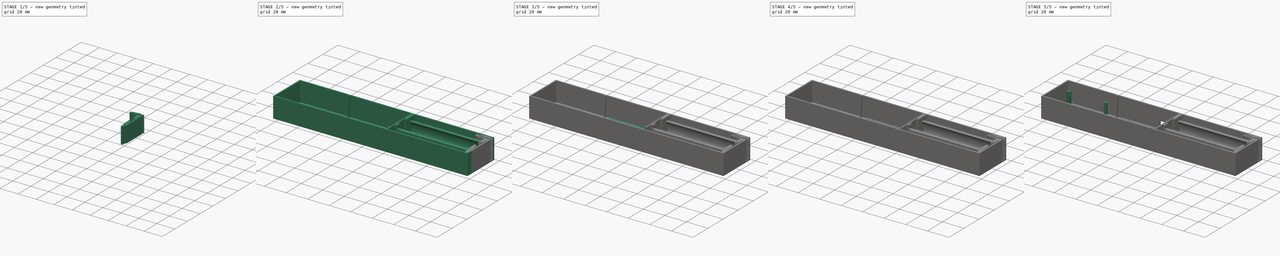
[diagram: build sequence overview — one tinted view per stage of 5, left to right]
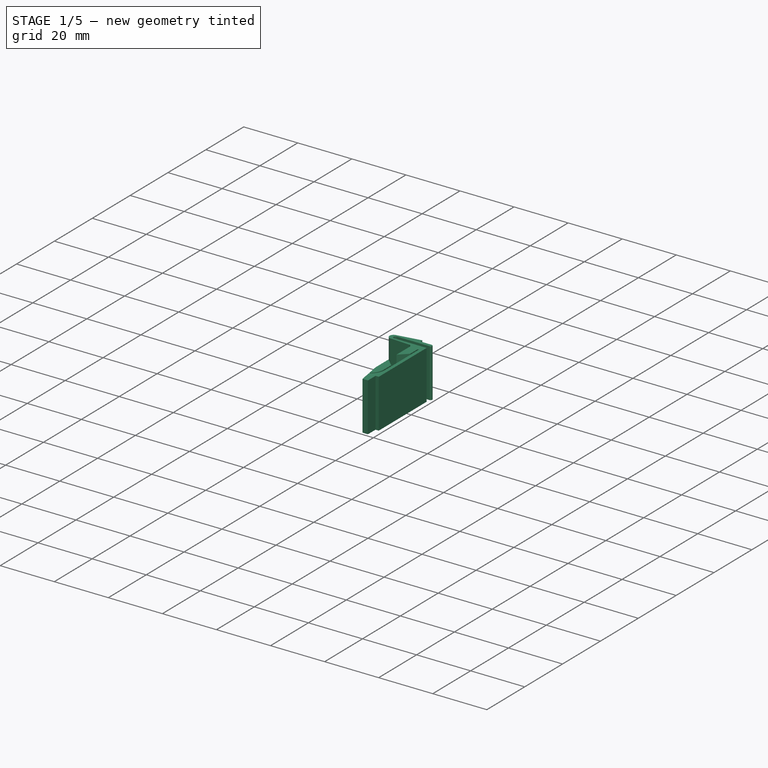
[diagram: stage 1 of 5 — iso view after this stage's code; geometry added in this stage tinted green]
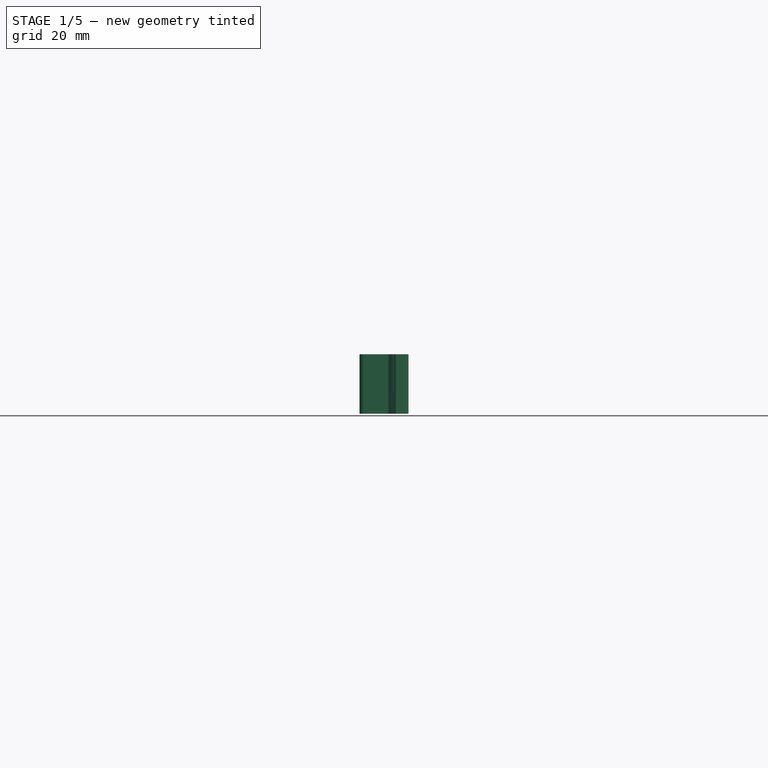
[diagram: stage 1 of 5 — front view after this stage's code; geometry added in this stage tinted green]
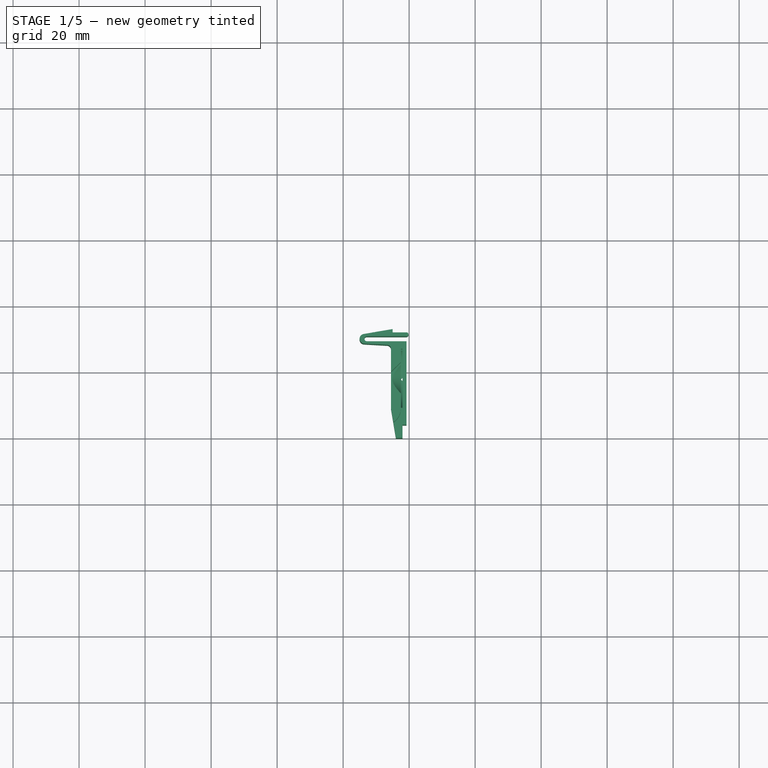
[diagram: stage 1 of 5 — top view after this stage's code; geometry added in this stage tinted green]
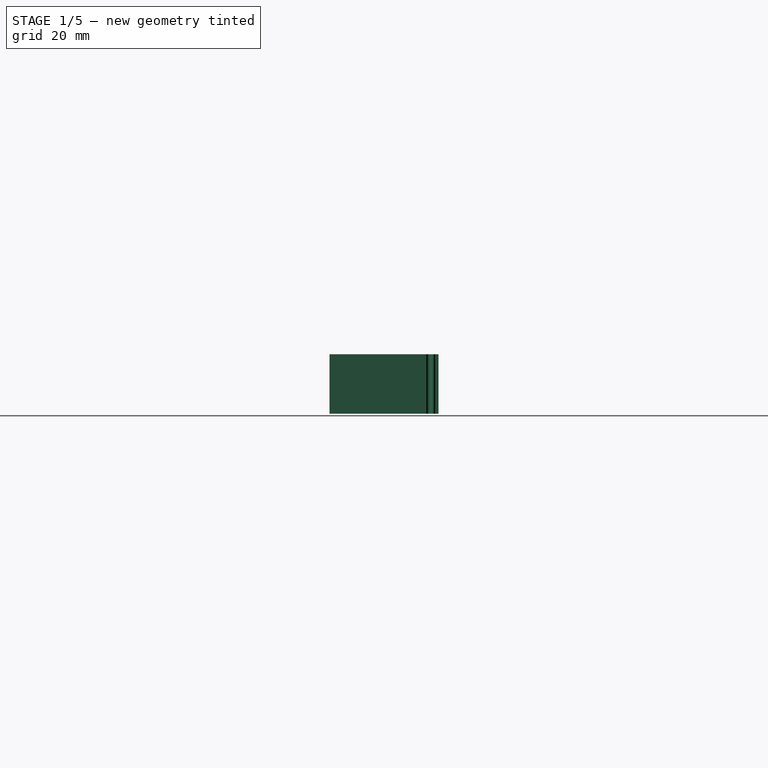
[diagram: stage 1 of 5 — right view after this stage's code; geometry added in this stage tinted green]
FCSTD DOCUMENT  (FreeCAD 0.20R29410 (Git))
Label: grobskizze
License: All rights reserved
LicenseURL: http://en.wikipedia.org/wiki/All_rights_reserved
objects: Sketcher::SketchObject×15, PartDesign::Pad×7, PartDesign::Pocket×6, PartDesign::Plane×4, PartDesign::Mirrored×4, PartDesign::LinearPattern×3, PartDesign::MultiTransform×3, PartDesign::Body×2, PartDesign::ShapeBinder×2, PartDesign::Line×1, PartDesign::Groove×1
note: 62 computed .brp shape members not serialized (recipe doc carries the construction recipe); baked Part::Feature solids carry a one-line shape summary decoded from their .brp

FEATURE [Sketcher::SketchObject] Sketch  label="master"
  FullyConstrained = true
  expr: Constraints[70] = .Constraints.poleoffset
  expr: Constraints[71] = .Constraints.poleoffset
  expr: Constraints[72] = .Constraints.poleoffset
  sketch-geometry (26):
    g0: LineSegment StartX=0 StartY=0 StartZ=0 EndX=178 EndY=0 EndZ=0
    g1: LineSegment StartX=178 StartY=0 StartZ=0 EndX=178 EndY=33 EndZ=0
    g2: LineSegment StartX=178 StartY=33 StartZ=0 EndX=0 EndY=33 EndZ=0
    g3: LineSegment StartX=0 StartY=33 StartZ=0 EndX=0 EndY=0 EndZ=0
    g4: LineSegment StartX=103 StartY=33 StartZ=0 EndX=104.2 EndY=33 EndZ=0
    g5: LineSegment StartX=104.2 StartY=33 StartZ=0 EndX=104.2 EndY=0 EndZ=0
    g6: LineSegment StartX=104.2 StartY=0 StartZ=0 EndX=103 EndY=0 EndZ=0
    g7: LineSegment StartX=103 StartY=0 StartZ=0 EndX=103 EndY=33 EndZ=0
    g8: LineSegment StartX=101 StartY=4 StartZ=0 EndX=55 EndY=4 EndZ=0
    g9: LineSegment StartX=55 StartY=4 StartZ=0 EndX=55 EndY=27 EndZ=0
    g10: LineSegment StartX=55 StartY=27 StartZ=0 EndX=101 EndY=27 EndZ=0
    g11: LineSegment StartX=101 StartY=27 StartZ=0 EndX=101 EndY=4 EndZ=0
    g12: LineSegment StartX=4 StartY=28 StartZ=0 EndX=38 EndY=28 EndZ=0
    g13: LineSegment StartX=38 StartY=28 StartZ=0 EndX=38 EndY=4 EndZ=0
    g14: LineSegment StartX=38 StartY=4 StartZ=0 EndX=4 EndY=4 EndZ=0
    g15: LineSegment StartX=4 StartY=4 StartZ=0 EndX=4 EndY=28 EndZ=0
    g16: LineSegment StartX=107.2 StartY=27 StartZ=0 EndX=174.2 EndY=27 EndZ=0
    g17: LineSegment StartX=174.2 StartY=27 StartZ=0 EndX=174.2 EndY=9 EndZ=0
    g18: LineSegment StartX=174.2 StartY=9 StartZ=0 EndX=107.2 EndY=9 EndZ=0
    g19: LineSegment StartX=107.2 StartY=9 StartZ=0 EndX=107.2 EndY=27 EndZ=0
    g20: GeomPoint X=140.7 Y=18 Z=0
    g21: GeomPoint X=5 Y=5 Z=0
    g22: LineSegment StartX=5 StartY=5 StartZ=0 EndX=37 EndY=5 EndZ=0
    g23: LineSegment StartX=37 StartY=5 StartZ=0 EndX=37 EndY=27 EndZ=0
    g24: LineSegment StartX=37 StartY=27 StartZ=0 EndX=5 EndY=27 EndZ=0
    g25: LineSegment StartX=5 StartY=27 StartZ=0 EndX=5 EndY=5 EndZ=0
  constraints (73):
    c: Coincident(g0,g1)
    c: Coincident(g1,g2)
    c: Coincident(g2,g3)
    c: Coincident(g3,g0)
    c: Horizontal(g0)
    c: Horizontal(g2)
    c: Vertical(g1)
    c: Vertical(g3)
    c: Coincident(g0,g-1)
    c: DistanceY(g1,g1) = 33  'innerheight'
    c: DistanceX(g2,g2) = 178  'innerwidth'
    c: Coincident(g4,g5)
    c: Coincident(g5,g6)
    c: Coincident(g6,g7)
    c: Coincident(g7,g4)
    c: Horizontal(g4)
    c: Horizontal(g6)
    c: Vertical(g5)
    c: Vertical(g7)
    c: PointOnObject(g4,g2)
    c: PointOnObject(g5,g0)
    c: DistanceX(g6,g5) = 1.2  'thick'
    c: Coincident(g8,g9)
    c: Coincident(g9,g10)
    c: Coincident(g10,g11)
    c: Coincident(g11,g8)
    c: Horizontal(g8)
    c: Horizontal(g10)
    c: Vertical(g9)
    c: Vertical(g11)
    c: DistanceY(g6,g8) = 4
    c: DistanceX(g8,g6) = 2
    c: DistanceY(g9,g9) = 23  'espheight'
    c: DistanceX(g8,g8) = 46  'espwidth'
    c: Coincident(g12,g13)
    c: Coincident(g13,g14)
    c: Coincident(g14,g15)
    c: Coincident(g15,g12)
    c: Horizontal(g12)
    c: Horizontal(g14)
    c: Vertical(g13)
    c: Vertical(g15)
    c: DistanceX(g12,g12) = 34
    c: DistanceY(g15,g15) = 24
    c: PointOnObject(g13,g8)
    c: DistanceX(g0,g14) = 4
    c: Coincident(g16,g17)
    c: Coincident(g17,g18)
    c: Coincident(g18,g19)
    c: Coincident(g19,g16)
    c: Horizontal(g16)
    c: Horizontal(g18)
    c: Vertical(g17)
    c: Vertical(g19)
    c: DistanceX(g4,g16) = 3
    c: Symmetric(g16,g17,g20)
    c: DistanceY(g19,g19) = 18
    c: DistanceX(g16,g16) = 67
    c: DistanceX(g4,g1) = 75
    c: DistanceY(g16,g1) = 6
    c: DistanceX(g14,g21) = 1  'poleoffset'
    c: Coincident(g22,g23)
    c: Coincident(g23,g24)
    c: Coincident(g24,g25)
    c: Coincident(g25,g22)
    c: Horizontal(g22)
    c: Horizontal(g24)
    c: Vertical(g23)
    c: Vertical(g25)
    c: Coincident(g22,g21)
    c: DistanceY(g14,g22) = 1
    c: DistanceY(g23,g12) = 1
    c: DistanceX(g23,g12) = 1
FEATURE [Sketcher::SketchObject] Sketch001
  ExternalGeometry = -> [Sketch]
  FullyConstrained = false
  MapMode = 5
  Support = -> [XY_Plane]
  expr: Constraints[10] = <<master>>.Constraints.thick
  expr: Constraints[11] = <<master>>.Constraints.thick
  expr: Constraints[8] = <<master>>.Constraints.thick
  expr: Constraints[9] = <<master>>.Constraints.thick
  sketch-geometry (26):
    g0: LineSegment StartX=-1.2 StartY=34.2 StartZ=0 EndX=179.2 EndY=34.2 EndZ=0
    g1: LineSegment StartX=179.2 StartY=34.2 StartZ=0 EndX=179.2 EndY=-1.2 EndZ=0
    g2: LineSegment StartX=179.2 StartY=-1.2 StartZ=0 EndX=-1.2 EndY=-1.2 EndZ=0
    g3: LineSegment StartX=-1.2 StartY=-1.2 StartZ=0 EndX=-1.2 EndY=34.2 EndZ=0
    g4: ArcOfCircle CenterX=11.8243 CenterY=16.0681 CenterZ=0 NormalX=0 NormalY=0 NormalZ=1 AngleXU=0 Radius=9.10165 StartAngle=1.5708 EndAngle=4.71239
    g5: ArcOfCircle CenterX=31.1155 CenterY=16.0681 CenterZ=0 NormalX=0 NormalY=0 NormalZ=1 AngleXU=0 Radius=9.10165 StartAngle=4.71239 EndAngle=7.85398
    g6: LineSegment StartX=11.8243 StartY=6.96642 StartZ=0 EndX=31.1155 EndY=6.96642 EndZ=0
    g7: LineSegment StartX=31.1155 StartY=25.1697 StartZ=0 EndX=11.8243 EndY=25.1697 EndZ=0
    g8: ArcOfCircle CenterX=58.9643 CenterY=15.3428 CenterZ=0 NormalX=0 NormalY=0 NormalZ=1 AngleXU=0 Radius=8.15885 StartAngle=1.5708 EndAngle=4.71239
    g9: ArcOfCircle CenterX=90.4391 CenterY=15.3428 CenterZ=0 NormalX=0 NormalY=0 NormalZ=1 AngleXU=0 Radius=8.15885 StartAngle=4.71239 EndAngle=7.85398
    g10: LineSegment StartX=58.9643 StartY=7.18398 StartZ=0 EndX=90.4391 EndY=7.18398 EndZ=0
    g11: LineSegment StartX=90.4391 StartY=23.5017 StartZ=0 EndX=58.9643 EndY=23.5017 EndZ=0
    g12: Circle CenterX=45.5486 CenterY=25.5838 CenterZ=0 NormalX=0 NormalY=0 NormalZ=1 AngleXU=0 Radius=4.80408
    g13: Circle CenterX=45.5486 CenterY=6.93943 CenterZ=0 NormalX=0 NormalY=0 NormalZ=1 AngleXU=0 Radius=4.80408
    g14: ArcOfCircle CenterX=114.263 CenterY=17.9793 CenterZ=0 NormalX=0 NormalY=0 NormalZ=1 AngleXU=0 Radius=2.37508 StartAngle=1.5708 EndAngle=4.71239
    g15: ArcOfCircle CenterX=165.921 CenterY=17.9793 CenterZ=0 NormalX=0 NormalY=0 NormalZ=1 AngleXU=0 Radius=2.37508 StartAngle=4.71239 EndAngle=7.85398
    g16: LineSegment StartX=114.263 StartY=15.6042 StartZ=0 EndX=165.921 EndY=15.6042 EndZ=0
    g17: LineSegment StartX=165.921 StartY=20.3544 StartZ=0 EndX=114.263 EndY=20.3544 EndZ=0
    g18: ArcOfCircle CenterX=107.969 CenterY=3.72883 CenterZ=0 NormalX=0 NormalY=0 NormalZ=1 AngleXU=0 Radius=1.90006 StartAngle=1.5708 EndAngle=4.71239
    g19: ArcOfCircle CenterX=173.759 CenterY=3.72883 CenterZ=0 NormalX=0 NormalY=0 NormalZ=1 AngleXU=0 Radius=1.90006 StartAngle=4.71239 EndAngle=7.85398
    g20: LineSegment StartX=107.969 StartY=1.82877 StartZ=0 EndX=173.759 EndY=1.82877 EndZ=0
    g21: LineSegment StartX=173.759 StartY=5.62889 StartZ=0 EndX=107.969 EndY=5.62889 EndZ=0
    g22: ArcOfCircle CenterX=108.326 CenterY=30.1851 CenterZ=0 NormalX=0 NormalY=0 NormalZ=1 AngleXU=0 Radius=1.25117 StartAngle=1.5708 EndAngle=4.71239
    g23: ArcOfCircle CenterX=172.453 CenterY=30.1851 CenterZ=0 NormalX=0 NormalY=0 NormalZ=1 AngleXU=0 Radius=1.25117 StartAngle=4.71239 EndAngle=7.85398
    g24: LineSegment StartX=108.326 StartY=28.934 StartZ=0 EndX=172.453 EndY=28.934 EndZ=0
    g25: LineSegment StartX=172.453 StartY=31.4363 StartZ=0 EndX=108.326 EndY=31.4363 EndZ=0
  constraints (44):
    c: Coincident(g0,g1)
    c: Coincident(g1,g2)
    c: Coincident(g2,g3)
    c: Coincident(g3,g0)
    c: Horizontal(g0)
    c: Horizontal(g2)
    c: Vertical(g1)
    c: Vertical(g3)
    c: DistanceX(g-3,g1) = 1.2
    c: DistanceY(g1,g-3) = 1.2
    c: DistanceY(g-4,g0) = 1.2
    c: DistanceX(g0,g-4) = 1.2
    c: Tangent(g4,g6) = -1.5708
    c: Tangent(g6,g5) = -1.5708
    c: Tangent(g5,g7) = -1.5708
    c: Tangent(g7,g4) = -1.5708
    c: Equal(g4,g5)
    c: Horizontal(g6)
    c: Tangent(g8,g10) = -1.5708
    c: Tangent(g10,g9) = -1.5708
    c: Tangent(g9,g11) = -1.5708
    c: Tangent(g11,g8) = -1.5708
    c: Equal(g8,g9)
    c: Horizontal(g10)
    c: Equal(g12,g13)
    c: Vertical(g12,g13)
    c: Tangent(g14,g16) = -1.5708
    c: Tangent(g16,g15) = -1.5708
    c: Tangent(g15,g17) = -1.5708
    c: Tangent(g17,g14) = -1.5708
    c: Equal(g14,g15)
    c: Horizontal(g16)
    c: Tangent(g18,g20) = -1.5708
    c: Tangent(g20,g19) = -1.5708
    c: Tangent(g19,g21) = -1.5708
    c: Tangent(g21,g18) = -1.5708
    c: Equal(g18,g19)
    c: Horizontal(g20)
    c: Tangent(g22,g24) = -1.5708
    c: Tangent(g24,g23) = -1.5708
    c: Tangent(g23,g25) = -1.5708
    c: Tangent(g25,g22) = -1.5708
    c: Equal(g22,g23)
    c: Horizontal(g24)
FEATURE [PartDesign::Pad] Pad
  Direction = (0,0,1)
  Length = 1
  Length2 = 10
  Profile = -> Sketch001
  ReferenceAxis = -> Sketch001 [N_Axis]
  Reversed = true
  Type = 0
FEATURE [PartDesign::Body] Body
  Group = -> [Sketch001,Sketch,Pad,Sketch002,Pad001,DatumPlane,Sketch003,Pad002,Sketch004,Pocket,Sketch005,Pad003,Pad004,LinearPattern,Sketch006,Pocket001,MultiTransform,LinearPattern001,LinearPattern002,DatumPlane002,DatumPlane003,Sketch007,Pad005,Sketch008,MultiTransform001,Mirrored,Mirrored001,Pocket002,MultiTransform002,Mirrored002,Mirrored003,DatumPlane004,Sketch009,Pocket003]
  Origin = -> Origin
  Tip = -> Pocket003
FEATURE [PartDesign::ShapeBinder] ShapeBinder
  Support = -> [Sketch002]
  TraceSupport = false
FEATURE [PartDesign::ShapeBinder] ShapeBinder001
  Support = -> [Sketch]
  TraceSupport = false
FEATURE [Sketcher::SketchObject] Sketch010
  ExternalGeometry = -> [ShapeBinder,ShapeBinder001]
  FullyConstrained = true
  MapMode = 5
  Support = -> [XY_Plane001]
  sketch-geometry (16):
    g0: LineSegment StartX=178 StartY=0 StartZ=0 EndX=176 EndY=0 EndZ=0
    g1: LineSegment StartX=176 StartY=0 StartZ=0 EndX=174.5 EndY=9 EndZ=0
    g2: LineSegment StartX=175 StartY=33 StartZ=0 EndX=175 EndY=32 EndZ=0
    g3: LineSegment StartX=175 StartY=32 StartZ=0 EndX=179.2 EndY=32 EndZ=0
    g4: LineSegment StartX=179.2 StartY=4 StartZ=0 EndX=178 EndY=4 EndZ=0
    g5: LineSegment StartX=178 StartY=4 StartZ=0 EndX=178 EndY=0 EndZ=0
    g6: LineSegment StartX=179.2 StartY=29.3 StartZ=0 EndX=179.2 EndY=4 EndZ=0
    g7: LineSegment StartX=175 StartY=33 StartZ=0 EndX=166.203 EndY=31.5 EndZ=0
    g8: LineSegment StartX=179.2 StartY=30.8 StartZ=0 EndX=167.2 EndY=30.8 EndZ=0
    g9: ArcOfCircle CenterX=167.2 CenterY=30.05 CenterZ=0 NormalX=0 NormalY=0 NormalZ=1 AngleXU=0 Radius=0.75 StartAngle=1.5708 EndAngle=4.71239
    g10: LineSegment StartX=179.2 StartY=29.3 StartZ=0 EndX=167.2 EndY=29.3 EndZ=0
    g11: ArcOfCircle CenterX=166.45 CenterY=30.05 CenterZ=0 NormalX=0 NormalY=0 NormalZ=1 AngleXU=0 Radius=1.47093 StartAngle=1.73968 EndAngle=4.65769
    g12: ArcOfCircle CenterX=179.2 CenterY=31.4 CenterZ=0 NormalX=0 NormalY=0 NormalZ=1 AngleXU=0 Radius=0.6 StartAngle=4.71239 EndAngle=7.85398
    g13: LineSegment StartX=174.5 StartY=27 StartZ=0 EndX=174.5 EndY=9 EndZ=0
    g14: LineSegment StartX=173.366 StartY=28.1982 StartZ=0 EndX=166.37 EndY=28.5813 EndZ=0
    g15: ArcOfCircle CenterX=173.3 CenterY=27 CenterZ=0 NormalX=0 NormalY=0 NormalZ=1 AngleXU=0 Radius=1.2 StartAngle=0 EndAngle=1.5161
  constraints (40):
    c: Coincident(g-3,g0)
    c: PointOnObject(g0,g-1)
    c: Coincident(g0,g1)
    c: Coincident(g2,g-6)
    c: Coincident(g2,g3)
    c: Horizontal(g3)
    c: Coincident(g6,g-4)
    c: Coincident(g6,g4)
    c: Coincident(g4,g-3)
    c: Coincident(g5,g4)
    c: Coincident(g5,g0)
    c: Vertical(g6)
    c: Coincident(g2,g7)
    c: DistanceY(g6,g8) = 1.5
    c: Horizontal(g8)
    c: Tangent(g8,g9) = -1.5708
    c: Coincident(g10,g6)
    c: Horizontal(g10)
    c: Tangent(g11,g7) = -1.5708
    c: Tangent(g11,g14) = 1.5708
    c: Radius(g12) = 0.6
    c: Tangent(g12,g3) = 1.5708
    c: Tangent(g12,g8) = 1.5708
    c: Coincident(g-7,g2)
    c: DistanceY(g7,g2) = 1.5
    c: Vertical(g12,g-9)
    c: Tangent(g10,g9) = 1.5708
    c: PointOnObject(g11,g9)
    c: Horizontal(g9,g11)
    c: DistanceX(g8,g8) = 12
    c: DistanceX(g0,g0) = 2
    c: Vertical(g13)
    c: Horizontal(g13,g-8)
    c: Horizontal(g13,g-8)
    c: Coincident(g15,g13)
    c: Horizontal(g15,g13)
    c: Radius(g15) = 1.2
    c: Tangent(g15,g14) = -1.5708
    c: DistanceX(g13,g4) = 3.5
    c: Coincident(g1,g13)
FEATURE [PartDesign::Pad] Pad006
  Direction = (0,0,1)
  Length = 18
  Length2 = 10
  Profile = -> Sketch010
  ReferenceAxis = -> Sketch010 [N_Axis]
  Type = 0
FEATURE [Sketcher::SketchObject] Sketch011
  AttachmentOffset = pos=(0,0,9) rot=(0,0,1;0rad)
  ExternalGeometry = -> [ShapeBinder001]
  FullyConstrained = true
  MapMode = 5
  Placement = pos=(0,0,9) rot=(0,0,1;0rad)
  Support = -> [XY_Plane001]
  sketch-geometry (6):
    g0: LineSegment StartX=174.2 StartY=18 StartZ=0 EndX=174.2 EndY=19.8 EndZ=0
    g1: LineSegment StartX=174.2 StartY=19.8 StartZ=0 EndX=177.5 EndY=23 EndZ=0
    g2: LineSegment StartX=177.5 StartY=23 StartZ=0 EndX=177.5 EndY=27 EndZ=0
    g3: LineSegment StartX=177.5 StartY=27 StartZ=0 EndX=178 EndY=27 EndZ=0
    g4: LineSegment StartX=178 StartY=27 StartZ=0 EndX=178 EndY=18 EndZ=0
    g5: LineSegment StartX=178 StartY=18 StartZ=0 EndX=174.2 EndY=18 EndZ=0
  constraints (17):
    c: PointOnObject(g0,g-4)
    c: Coincident(g0,g1)
    c: Coincident(g1,g2)
    c: Vertical(g2)
    c: Coincident(g2,g3)
    c: PointOnObject(g3,g-3)
    c: Coincident(g3,g4)
    c: PointOnObject(g4,g-3)
    c: Coincident(g4,g5)
    c: Coincident(g5,g0)
    c: Horizontal(g5)
    c: Symmetric(g-4,g-4,g0)
    c: DistanceY(g0,g0) = 1.8
    c: DistanceY(g4,g1) = 5
    c: Horizontal(g3)
    c: Horizontal(g-4,g2)
    c: DistanceX(g3,g3) = 0.5
FEATURE [PartDesign::Line] DatumLine
  AttacherType = Attacher::AttachEngineLine
  Length = 20
  MapMode = 29
  Placement = pos=(0,18,9) rot=(0.57735,-0.57735,-0.57735;2.0944rad)
  ResizeMode = 0
  Support = -> [Sketch011]
FEATURE [PartDesign::Groove] Groove001
  Angle = 360
  Axis = (-1,0,0)
  Base = (0,18,9)
  BaseFeature = -> Pad006
  Profile = -> Sketch011
  ReferenceAxis = -> DatumLine
FEATURE [Sketcher::SketchObject] Sketch012
  AttachmentOffset = pos=(0,0,6.5) rot=(0,0,1;0rad)
  ExternalGeometry = -> [Sketch011,DatumLine,ShapeBinder001]
  FullyConstrained = true
  MapMode = 5
  Placement = pos=(0,0,6.5) rot=(0,0,1;0rad)
  Support = -> [XY_Plane001]
  sketch-geometry (10):
    g0: LineSegment StartX=178 StartY=27 StartZ=0 EndX=177.5 EndY=27 EndZ=0
    g1: LineSegment StartX=177.5 StartY=27 StartZ=0 EndX=177.5 EndY=23 EndZ=0
    g2: LineSegment StartX=177.5 StartY=23 StartZ=0 EndX=174.2 EndY=19.8 EndZ=0
    g3: LineSegment StartX=174.2 StartY=19.8 StartZ=0 EndX=174.2 EndY=16.2 EndZ=0
    g4: LineSegment StartX=174.2 StartY=16.2 StartZ=0 EndX=177.5 EndY=13 EndZ=0
    g5: LineSegment StartX=178 StartY=9 StartZ=0 EndX=178 EndY=27 EndZ=0
    g6: LineSegment StartX=177.5 StartY=13 StartZ=0 EndX=177.5 EndY=9 EndZ=0
    g7: ArcOfCircle CenterX=172.5 CenterY=9 CenterZ=0 NormalX=0 NormalY=0 NormalZ=1 AngleXU=0 Radius=5 StartAngle=4.71239 EndAngle=6.28319
    g8: LineSegment StartX=172.5 StartY=4 StartZ=0 EndX=172.5 EndY=3.5 EndZ=0
    g9: ArcOfCircle CenterX=172.5 CenterY=9 CenterZ=0 NormalX=0 NormalY=0 NormalZ=1 AngleXU=0 Radius=5.5 StartAngle=4.71239 EndAngle=6.28319
  constraints (23):
    c: Coincident(g-4,g0)
    c: Coincident(g0,g-3)
    c: Coincident(g0,g1)
    c: Coincident(g1,g-5)
    c: Coincident(g1,g2)
    c: Coincident(g2,g-5)
    c: Coincident(g2,g3)
    c: Coincident(g3,g4)
    c: Coincident(g5,g0)
    c: Vertical(g5)
    c: Symmetric(g2,g3,g-6)
    c: Vertical(g1,g4)
    c: Equal(g4,g2)
    c: Coincident(g4,g6)
    c: Vertical(g6)
    c: Tangent(g6,g7) = 1.5708
    c: Coincident(g7,g8)
    c: Perpendicular(g8,g9) = 1.5708
    c: Coincident(g9,g7)
    c: Tangent(g5,g9) = -1.5708
    c: Horizontal(g-8,g6)
    c: Vertical(g7,g7)
    c: Radius(g7) = 5
FEATURE [PartDesign::Pocket] Pocket004
  BaseFeature = -> Groove001
  Direction = (0,0,-1)
  Length = 18
  Length2 = 5
  Profile = -> Sketch012
  ReferenceAxis = -> Sketch012 [N_Axis]
  Reversed = true
  Type = 0
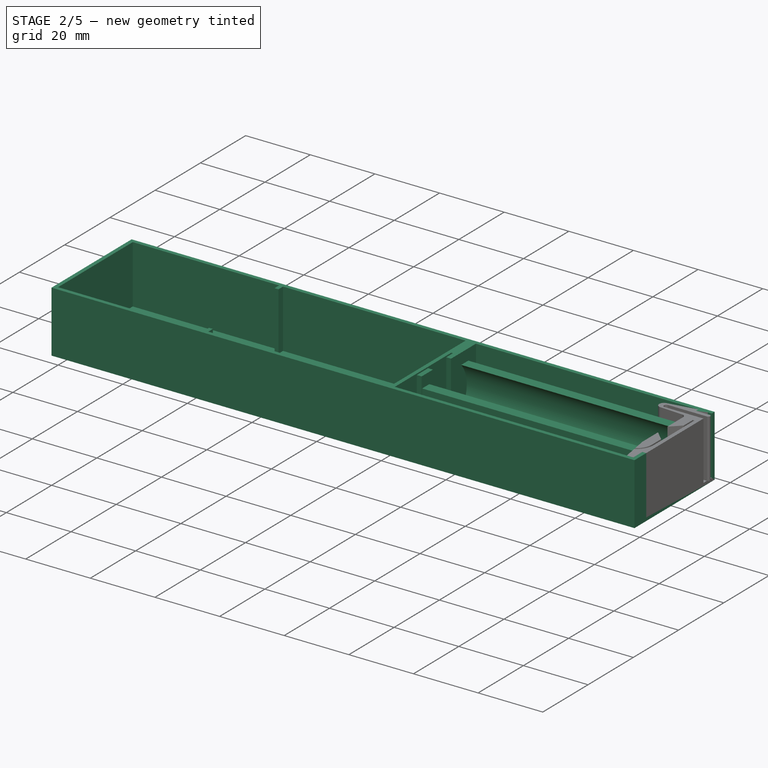
[diagram: stage 2 of 5 — iso view after this stage's code; geometry added in this stage tinted green]
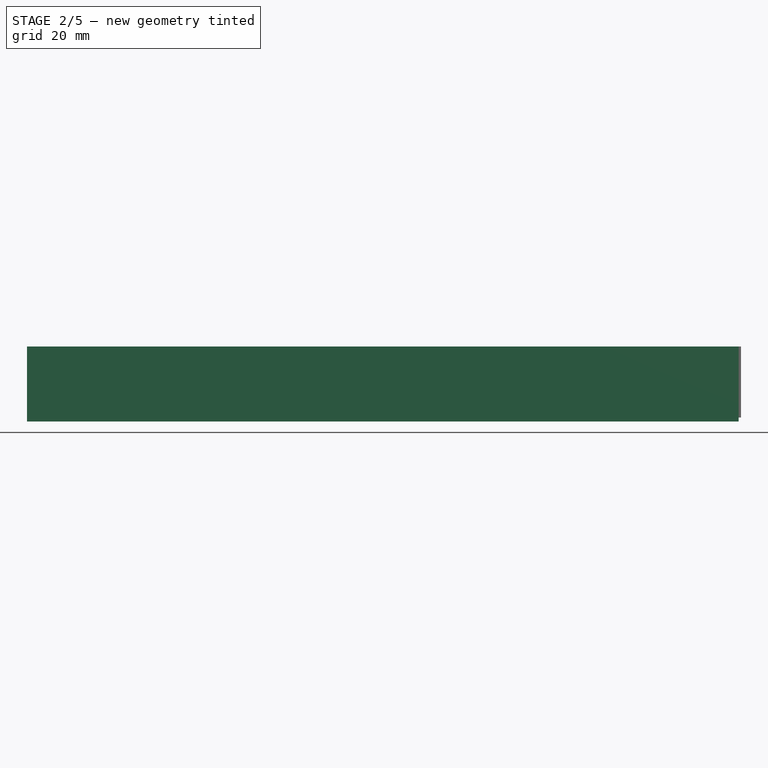
[diagram: stage 2 of 5 — front view after this stage's code; geometry added in this stage tinted green]
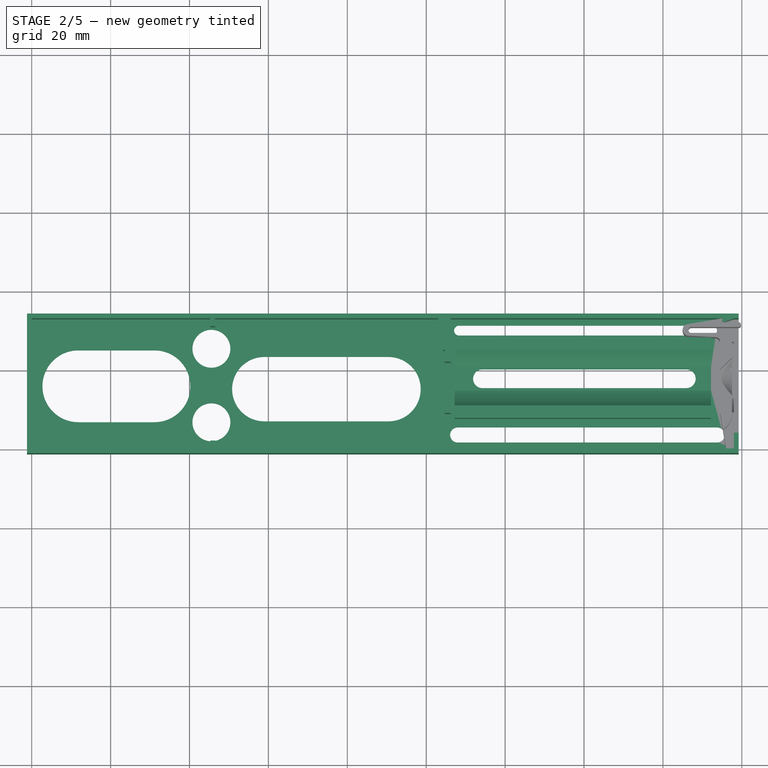
[diagram: stage 2 of 5 — top view after this stage's code; geometry added in this stage tinted green]
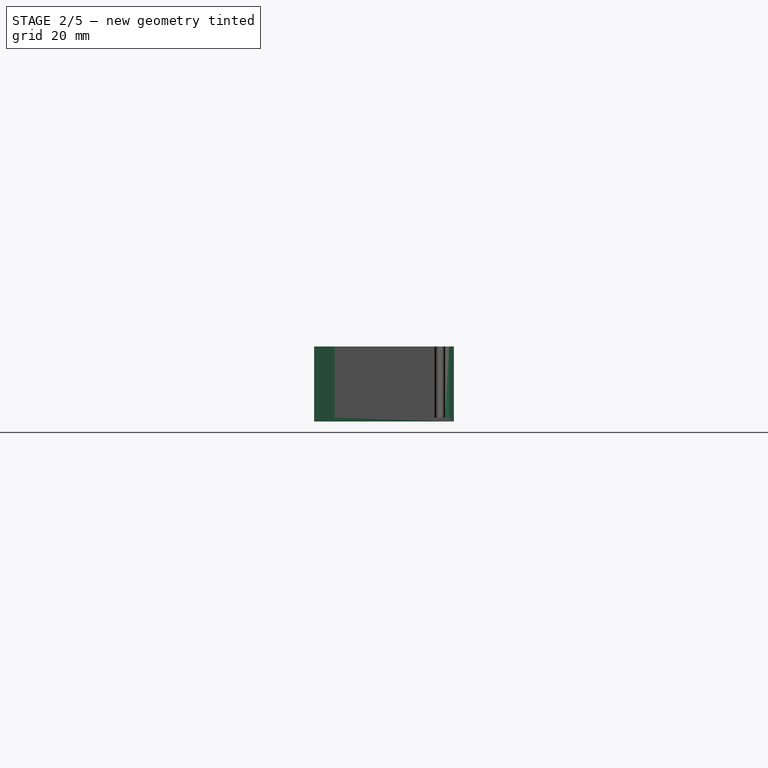
[diagram: stage 2 of 5 — right view after this stage's code; geometry added in this stage tinted green]
FEATURE [Sketcher::SketchObject] Sketch002
  ExternalGeometry = -> [Pad,Sketch]
  FullyConstrained = true
  MapMode = 5
  Support = -> [XY_Plane]
  expr: Constraints[75] = <<master>>.Constraints.thick
  sketch-geometry (34):
    g0: LineSegment StartX=-1.2 StartY=34.2 StartZ=0 EndX=179.2 EndY=34.2 EndZ=0
    g1: LineSegment StartX=179.2 StartY=34.2 StartZ=0 EndX=179.2 EndY=33 EndZ=0
    g2: LineSegment StartX=179.2 StartY=-1.2 StartZ=0 EndX=-1.2 EndY=-1.2 EndZ=0
    g3: LineSegment StartX=-1.2 StartY=-1.2 StartZ=0 EndX=-1.2 EndY=34.2 EndZ=0
    g4: LineSegment StartX=0 StartY=33 StartZ=0 EndX=45.3 EndY=33 EndZ=0
    g5: LineSegment StartX=103 StartY=33 StartZ=0 EndX=103 EndY=0 EndZ=0
    g6: LineSegment StartX=103 StartY=0 StartZ=0 EndX=46.5 EndY=0 EndZ=0
    g7: LineSegment StartX=0 StartY=0 StartZ=0 EndX=0 EndY=33 EndZ=0
    g8: LineSegment StartX=104.2 StartY=0 StartZ=0 EndX=178 EndY=0 EndZ=0
    g9: LineSegment StartX=178 StartY=0 StartZ=0 EndX=178 EndY=4 EndZ=0
    g10: LineSegment StartX=175 StartY=33 StartZ=0 EndX=106.2 EndY=33 EndZ=0
    g11: LineSegment StartX=104.2 StartY=25 StartZ=0 EndX=104.2 EndY=0 EndZ=0
    g12: LineSegment StartX=104.7 StartY=25 StartZ=0 EndX=104.7 EndY=22 EndZ=0
    g13: LineSegment StartX=104.7 StartY=22 StartZ=0 EndX=106.2 EndY=22 EndZ=0
    g14: LineSegment StartX=106.2 StartY=22 StartZ=0 EndX=106.2 EndY=33 EndZ=0
    g15: LineSegment StartX=104.7 StartY=25 StartZ=0 EndX=104.2 EndY=25 EndZ=0
    g16: LineSegment StartX=104.7 StartY=9 StartZ=0 EndX=106.2 EndY=9 EndZ=0
    g17: LineSegment StartX=106.2 StartY=9 StartZ=0 EndX=106.2 EndY=14 EndZ=0
    g18: LineSegment StartX=106.2 StartY=14 StartZ=0 EndX=104.7 EndY=14 EndZ=0
    g19: LineSegment StartX=104.7 StartY=14 StartZ=0 EndX=104.7 EndY=9 EndZ=0
    g20: LineSegment StartX=178 StartY=33 StartZ=0 EndX=179.2 EndY=33 EndZ=0
    g21: LineSegment StartX=178 StartY=4 StartZ=0 EndX=179.2 EndY=4 EndZ=0
    g22: LineSegment StartX=179.2 StartY=4 StartZ=0 EndX=179.2 EndY=-1.2 EndZ=0
    g23: LineSegment StartX=178 StartY=33 StartZ=0 EndX=175 EndY=32 EndZ=0
    g24: LineSegment StartX=175 StartY=32 StartZ=0 EndX=175 EndY=33 EndZ=0
    g25: GeomPoint X=46.5 Y=4 Z=0
    g26: LineSegment StartX=45.3 StartY=0 StartZ=0 EndX=45.3 EndY=2 EndZ=0
    g27: LineSegment StartX=45.3 StartY=2 StartZ=0 EndX=46.5 EndY=2 EndZ=0
    g28: LineSegment StartX=46.5 StartY=2 StartZ=0 EndX=46.5 EndY=0 EndZ=0
    g29: LineSegment StartX=45.3 StartY=0 StartZ=0 EndX=0 EndY=0 EndZ=0
    g30: LineSegment StartX=46.5 StartY=33 StartZ=0 EndX=46.5 EndY=31 EndZ=0
    g31: LineSegment StartX=46.5 StartY=31 StartZ=0 EndX=45.3 EndY=31 EndZ=0
    g32: LineSegment StartX=45.3 StartY=31 StartZ=0 EndX=45.3 EndY=33 EndZ=0
    g33: LineSegment StartX=46.5 StartY=33 StartZ=0 EndX=103 EndY=33 EndZ=0
  constraints (93):
    c: Coincident(g0,g1)
    c: Coincident(g22,g2)
    c: Coincident(g2,g3)
    c: Coincident(g3,g0)
    c: Horizontal(g0)
    c: Horizontal(g2)
    c: Vertical(g1)
    c: Vertical(g3)
    c: Coincident(g0,g-3)
    c: Coincident(g22,g-5)
    c: Coincident(g33,g5)
    c: Coincident(g5,g6)
    c: Coincident(g29,g7)
    c: Coincident(g7,g4)
    c: Horizontal(g4)
    c: Horizontal(g6)
    c: Vertical(g5)
    c: Vertical(g7)
    c: Coincident(g4,g-4)
    c: Coincident(g5,g-8)
    c: Coincident(g8,g9)
    c: Coincident(g15,g11)
    c: Coincident(g11,g8)
    c: Horizontal(g10)
    c: Vertical(g9)
    c: Vertical(g11)
    c: Coincident(g8,g-7)
    c: Vertical(g12)
    c: Coincident(g12,g13)
    c: Coincident(g13,g14)
    c: Vertical(g14)
    c: Coincident(g10,g14)
    c: Coincident(g15,g12)
    c: Horizontal(g13)
    c: DistanceY(g13,g-10) = 5
    c: Horizontal(g15)
    c: DistanceY(g12,g-10) = 2
    c: DistanceX(g15,g15) = 0.5
    c: DistanceX(g13,g13) = 1.5
    c: Coincident(g16,g17)
    c: Coincident(g17,g18)
    c: Coincident(g18,g19)
    c: Coincident(g19,g16)
    c: Horizontal(g16)
    c: Horizontal(g18)
    c: Vertical(g17)
    c: Vertical(g19)
    c: PointOnObject(g17,g14)
    c: PointOnObject(g18,g12)
    c: PointOnObject(g-11,g16)
    c: DistanceY(g17,g17) = 5
    c: Coincident(g20,g-9)
    c: Horizontal(g20)
    c: Horizontal(g21)
    c: Coincident(g1,g20)
    c: Coincident(g22,g21)
    c: Coincident(g9,g21)
    c: PointOnObject(g1,g-12)
    c: Vertical(g22)
    c: Coincident(g8,g-6)
    c: DistanceY(g9,g9) = 4
    c: Coincident(g-9,g23)
    c: Coincident(g23,g24)
    c: Vertical(g24)
    c: Coincident(g10,g24)
    c: DistanceY(g24,g24) = 1
    c: PointOnObject(g10,g20)
    c: DistanceX(g10,g20) = 3
    c: Symmetric(g-13,g-14,g25)
    c: Vertical(g26)
    c: Coincident(g26,g27)
    c: Horizontal(g27)
    c: Coincident(g27,g28)
    c: Vertical(g28)
    c: DistanceY(g28,g28) = 2
    c: DistanceX(g27,g27) = 1.2
    c: PointOnObject(g25,g28)
    c: Coincident(g6,g28)
    c: Coincident(g29,g26)
    c: PointOnObject(g26,g6)
    c: Horizontal(g29)
    c: Vertical(g30)
    c: Coincident(g30,g31)
    c: Horizontal(g31)
    c: Coincident(g31,g32)
    c: Vertical(g32)
    c: PointOnObject(g30,g28)
    c: PointOnObject(g31,g26)
    c: Equal(g30,g28)
    c: Coincident(g4,g32)
    c: Coincident(g33,g30)
    c: PointOnObject(g30,g4)
    c: Horizontal(g33)
FEATURE [PartDesign::Pad] Pad001
  BaseFeature = -> Pad
  Direction = (0,0,1)
  Length = 18
  Length2 = 10
  Profile = -> Sketch002
  ReferenceAxis = -> Sketch002 [N_Axis]
  Type = 0
FEATURE [PartDesign::Plane] DatumPlane
  Length = 68.7703
  MapMode = 47
  Placement = pos=(107.2,9,0) rot=(0.57735,0.57735,-0.57735;4.18879rad)
  ResizeMode = 0
  Support = -> [Sketch]
  Width = 60.7703
FEATURE [Sketcher::SketchObject] Sketch003
  ExternalGeometry = -> [Sketch]
  FullyConstrained = true
  MapMode = 5
  Placement = pos=(107.2,9,0) rot=(0.57735,0.57735,-0.57735;4.18879rad)
  Support = -> [DatumPlane]
  expr: Constraints[15] = (1 + sqrt(2) / 2) * 9
  sketch-geometry (10):
    g0: LineSegment StartX=-1.2 StartY=0 StartZ=0 EndX=5.95862 EndY=0 EndZ=0
    g1: LineSegment StartX=19.2 StartY=0 StartZ=0 EndX=19.2 EndY=-15.364 EndZ=0
    g2: LineSegment StartX=19.2 StartY=-15.364 StartZ=0 EndX=16.0534 EndY=-15.364 EndZ=0
    g3: ArcOfCircle CenterX=9 CenterY=-9 CenterZ=0 NormalX=0 NormalY=0 NormalZ=1 AngleXU=0 Radius=9.5 StartAngle=5.54912 EndAngle=7.5281
    g4: LineSegment StartX=1.94663 StartY=-15.364 StartZ=0 EndX=-1.2 EndY=-15.364 EndZ=0
    g5: LineSegment StartX=-1.2 StartY=-15.364 StartZ=0 EndX=-1.2 EndY=0 EndZ=0
    g6: GeomPoint X=5.95862 Y=0 Z=0
    g7: GeomPoint X=12.0414 Y=0 Z=0
    g8: ArcOfCircle CenterX=9 CenterY=-9 CenterZ=0 NormalX=0 NormalY=0 NormalZ=1 AngleXU=0 Radius=9.5 StartAngle=1.89668 EndAngle=3.87565
    g9: LineSegment StartX=12.0414 StartY=0 StartZ=0 EndX=19.2 EndY=0 EndZ=0
  constraints (29):
    c: PointOnObject(g0,g-1)
    c: Horizontal(g0)
    c: Coincident(g9,g1)
    c: Vertical(g1)
    c: Coincident(g1,g2)
    c: Horizontal(g2)
    c: Horizontal(g4)
    c: Coincident(g4,g5)
    c: Coincident(g5,g0)
    c: Coincident(g3,g2)
    c: Coincident(g8,g4)
    c: Vertical(g5)
    c: PointOnObject(g8,g2)
    c: DistanceY(g3,g-3) = 9
    c: Radius(g3) = 9.5
    c: DistanceY(g5,g5) = 15.364
    c: Equal(g4,g2)
    c: DistanceX(g0,g-1) = 1.2
    c: DistanceX(g-3,g9) = 1.2
    c: PointOnObject(g6,g3)
    c: PointOnObject(g7,g3)
    c: PointOnObject(g7,g0)
    c: PointOnObject(g6,g0)
    c: Equal(g3,g8)
    c: Coincident(g3,g8)
    c: Coincident(g0,g8)
    c: Coincident(g9,g3)
    c: Horizontal(g9)
    c: PointOnObject(g1,g-1)
FEATURE [PartDesign::Pad] Pad002
  BaseFeature = -> Pad001
  Direction = (-1,0,0)
  Length = 65
  Length2 = 10
  Profile = -> Sketch003
  ReferenceAxis = -> Sketch003 [N_Axis]
  Reversed = true
  Type = 0
FEATURE [Sketcher::SketchObject] Sketch013
  ExternalGeometry = -> [Sketch011,Sketch012]
  FullyConstrained = true
  MapMode = 5
  Support = -> [XY_Plane001]
  sketch-geometry (8):
    g0: LineSegment StartX=177.5 StartY=27 StartZ=0 EndX=178 EndY=27 EndZ=0
    g1: LineSegment StartX=178 StartY=27 StartZ=0 EndX=178 EndY=13 EndZ=0
    g2: LineSegment StartX=178 StartY=13 StartZ=0 EndX=177.5 EndY=13 EndZ=0
    g3: LineSegment StartX=177.5 StartY=13 StartZ=0 EndX=177.5 EndY=20 EndZ=0
    g4: LineSegment StartX=177.5 StartY=20 StartZ=0 EndX=177 EndY=20 EndZ=0
    g5: LineSegment StartX=177 StartY=20 StartZ=0 EndX=177 EndY=21 EndZ=0
    g6: LineSegment StartX=177 StartY=21 StartZ=0 EndX=177.5 EndY=21 EndZ=0
    g7: LineSegment StartX=177.5 StartY=21 StartZ=0 EndX=177.5 EndY=27 EndZ=0
  constraints (21):
    c: Coincident(g0,g1)
    c: Coincident(g1,g2)
    c: Coincident(g2,g3)
    c: Coincident(g7,g0)
    c: Horizontal(g2)
    c: Vertical(g1)
    c: Coincident(g0,g-4)
    c: Coincident(g0,g-5)
    c: Coincident(g2,g-6)
    c: Horizontal(g4)
    c: Coincident(g4,g5)
    c: Vertical(g5)
    c: Coincident(g5,g6)
    c: Horizontal(g6)
    c: DistanceY(g-5,g4) = 2
    c: DistanceY(g5,g5) = 1
    c: DistanceX(g6,g6) = 0.5
    c: Coincident(g3,g4)
    c: Coincident(g7,g6)
    c: Vertical(g7)
    c: Vertical(g3)
FEATURE [PartDesign::Pocket] Pocket005
  BaseFeature = -> Pocket004
  Direction = (0,0,-1)
  Length = 18
  Length2 = 5
  Profile = -> Sketch013
  ReferenceAxis = -> Sketch013 [N_Axis]
  Reversed = true
  Type = 0
FEATURE [Sketcher::SketchObject] Sketch014
  ExternalGeometry = -> [Pocket005,DatumLine]
  FullyConstrained = false
  MapMode = 5
  Placement = pos=(0,0,0) rot=(1,0,0;1.5708rad)
  Support = -> [XZ_Plane001]
  sketch-geometry (7):
    g0: LineSegment StartX=174.5 StartY=18 StartZ=0 EndX=161.645 EndY=9 EndZ=0
    g1: LineSegment StartX=161.645 StartY=9 StartZ=0 EndX=174.5 EndY=1.8e-15 EndZ=0
    g2: LineSegment StartX=174.5 StartY=1.8e-15 StartZ=0 EndX=174.5 EndY=-3.02461 EndZ=0
    g3: LineSegment StartX=174.5 StartY=-3.02461 StartZ=0 EndX=157.856 EndY=-3.02461 EndZ=0
    g4: LineSegment StartX=157.856 StartY=-3.02461 StartZ=0 EndX=157.856 EndY=20.6137 EndZ=0
    g5: LineSegment StartX=157.856 StartY=20.6137 StartZ=0 EndX=174.5 EndY=20.6137 EndZ=0
    g6: LineSegment StartX=174.5 StartY=20.6137 StartZ=0 EndX=174.5 EndY=18 EndZ=0
  constraints (15):
    c: Coincident(g-3,g0)
    c: Coincident(g0,g1)
    c: Coincident(g1,g-3)
    c: Coincident(g1,g2)
    c: Vertical(g2)
    c: Coincident(g2,g3)
    c: Horizontal(g3)
    c: Coincident(g3,g4)
    c: Vertical(g4)
    c: Coincident(g4,g5)
    c: Horizontal(g5)
    c: Coincident(g5,g6)
    c: Coincident(g6,g0)
    c: Vertical(g6)
    c: PointOnObject(g0,g-5)
FEATURE [PartDesign::Body] Body001  label="latch"
  Group = -> [ShapeBinder,Sketch010,ShapeBinder001,Pad006,Sketch011,DatumLine,Groove001,Sketch012,Pocket004,Sketch013,Pocket005,Sketch014]
  Origin = -> Origin001
  Tip = -> Pocket005
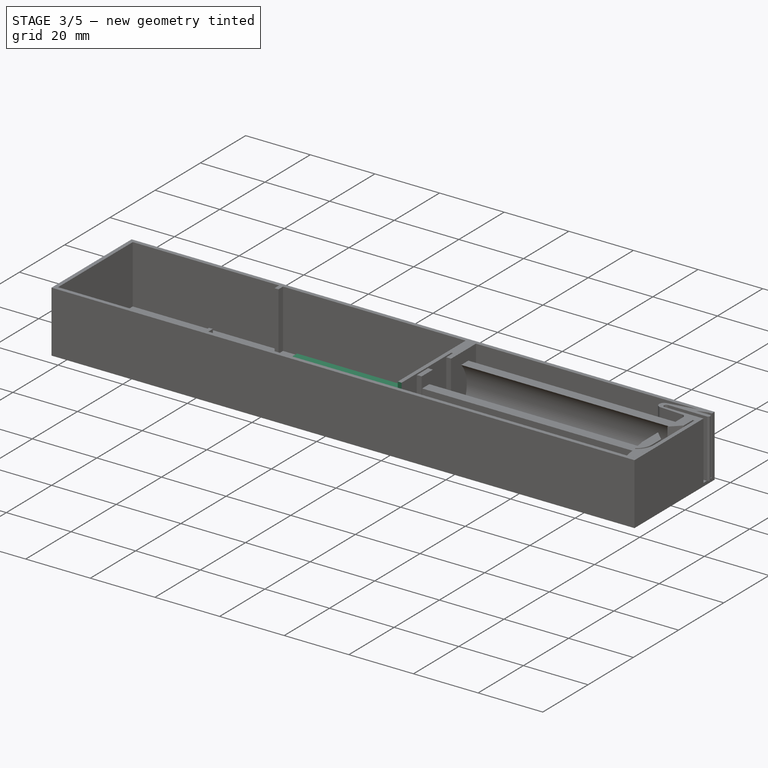
[diagram: stage 3 of 5 — iso view after this stage's code; geometry added in this stage tinted green]
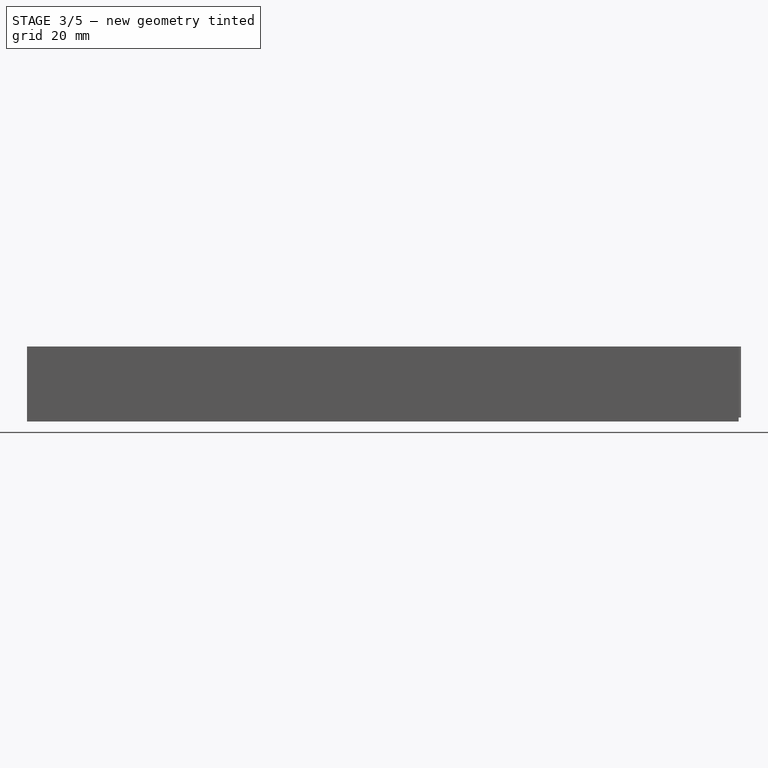
[diagram: stage 3 of 5 — front view after this stage's code; geometry added in this stage tinted green]
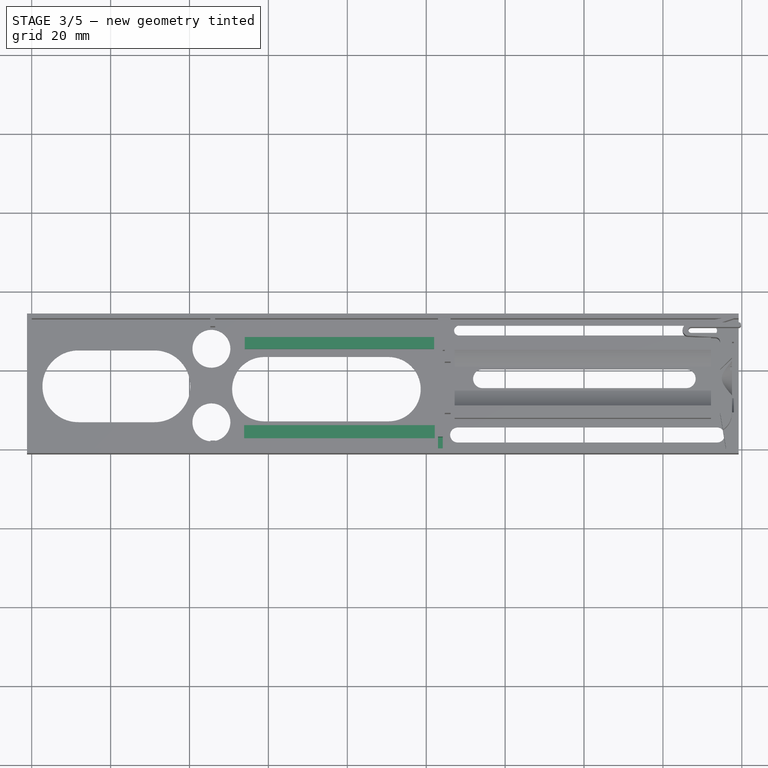
[diagram: stage 3 of 5 — top view after this stage's code; geometry added in this stage tinted green]
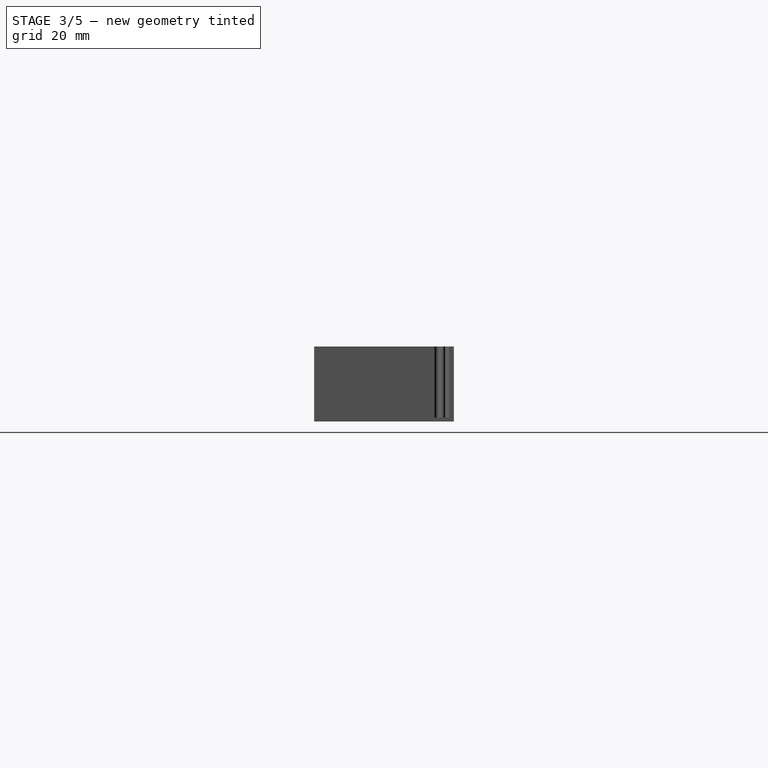
[diagram: stage 3 of 5 — right view after this stage's code; geometry added in this stage tinted green]
FEATURE [Sketcher::SketchObject] Sketch004
  FullyConstrained = true
  MapMode = 5
  Placement = pos=(107.2,9,0) rot=(0.57735,0.57735,-0.57735;4.18879rad)
  Support = -> [DatumPlane]
  sketch-geometry (4):
    g0: LineSegment StartX=-9 StartY=-18 StartZ=0 EndX=-6 EndY=-18 EndZ=0
    g1: LineSegment StartX=-6 StartY=-18 StartZ=0 EndX=-6 EndY=-6 EndZ=0
    g2: LineSegment StartX=-6 StartY=-6 StartZ=0 EndX=-9 EndY=-6 EndZ=0
    g3: LineSegment StartX=-9 StartY=-6 StartZ=0 EndX=-9 EndY=-18 EndZ=0
  constraints (12):
    c: Coincident(g0,g1)
    c: Coincident(g1,g2)
    c: Coincident(g2,g3)
    c: Coincident(g3,g0)
    c: Horizontal(g0)
    c: Horizontal(g2)
    c: Vertical(g1)
    c: Vertical(g3)
    c: DistanceY(g0,g-1) = 18
    c: DistanceX(g0,g-1) = 9
    c: DistanceX(g2,g2) = 3
    c: DistanceY(g1,g1) = 12
FEATURE [PartDesign::Pocket] Pocket
  BaseFeature = -> Pad002
  Direction = (1,0,0)
  Length = 10
  Length2 = 5
  Profile = -> Sketch004
  ReferenceAxis = -> Sketch004 [N_Axis]
  Reversed = true
  Type = 0
FEATURE [Sketcher::SketchObject] Sketch005
  ExternalGeometry = -> [Sketch]
  FullyConstrained = true
  MapMode = 5
  Support = -> [XY_Plane]
  sketch-geometry (4):
    g0: LineSegment StartX=54 StartY=6 StartZ=0 EndX=102 EndY=6 EndZ=0
    g1: LineSegment StartX=102 StartY=6 StartZ=0 EndX=102 EndY=3 EndZ=0
    g2: LineSegment StartX=102 StartY=3 StartZ=0 EndX=54 EndY=3 EndZ=0
    g3: LineSegment StartX=54 StartY=3 StartZ=0 EndX=54 EndY=6 EndZ=0
  constraints (12):
    c: Coincident(g0,g1)
    c: Coincident(g1,g2)
    c: Coincident(g2,g3)
    c: Coincident(g3,g0)
    c: Horizontal(g0)
    c: Horizontal(g2)
    c: Vertical(g1)
    c: Vertical(g3)
    c: DistanceY(g2,g-5) = 1
    c: DistanceY(g-5,g0) = 2
    c: DistanceX(g0,g-5) = 1
    c: DistanceX(g-4,g1) = 1
FEATURE [PartDesign::Pad] Pad003
  BaseFeature = -> Pocket
  Direction = (0,0,1)
  Length = 3
  Length2 = 10
  Profile = -> Sketch005
  ReferenceAxis = -> Sketch005 [N_Axis]
  TaperAngle = 3
  Type = 0
FEATURE [PartDesign::Pad] Pad004
  BaseFeature = -> Pad003
  Direction = (0,0,1)
  Length = 3
  Length2 = 10
  Profile = -> Sketch005
  ReferenceAxis = -> Sketch005 [N_Axis]
  Type = 0
FEATURE [PartDesign::LinearPattern] LinearPattern
  BaseFeature = -> Pad004
  Direction = -> Sketch005 [V_Axis]
  Length = 22.5
  Occurrences = 2
  Originals = -> [Pad004]
  expr: Length = <<master>>.Constraints.espheight - 0.5mm
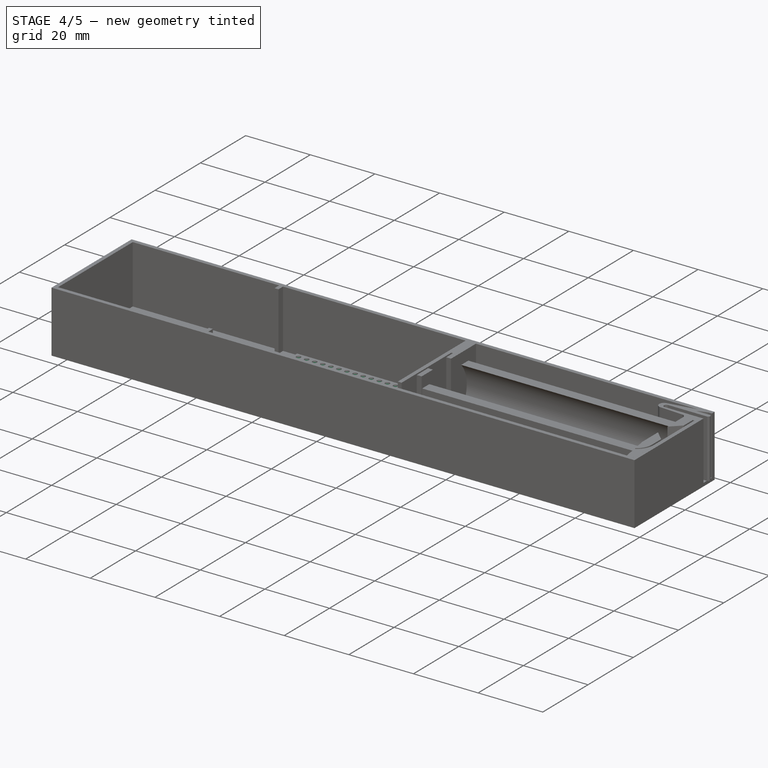
[diagram: stage 4 of 5 — iso view after this stage's code; geometry added in this stage tinted green]
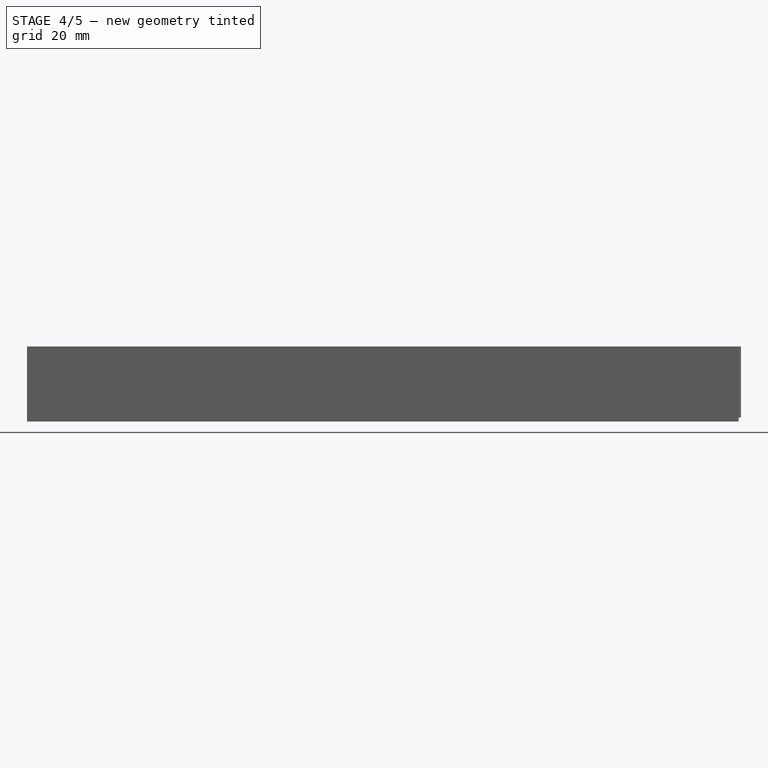
[diagram: stage 4 of 5 — front view after this stage's code; geometry added in this stage tinted green]
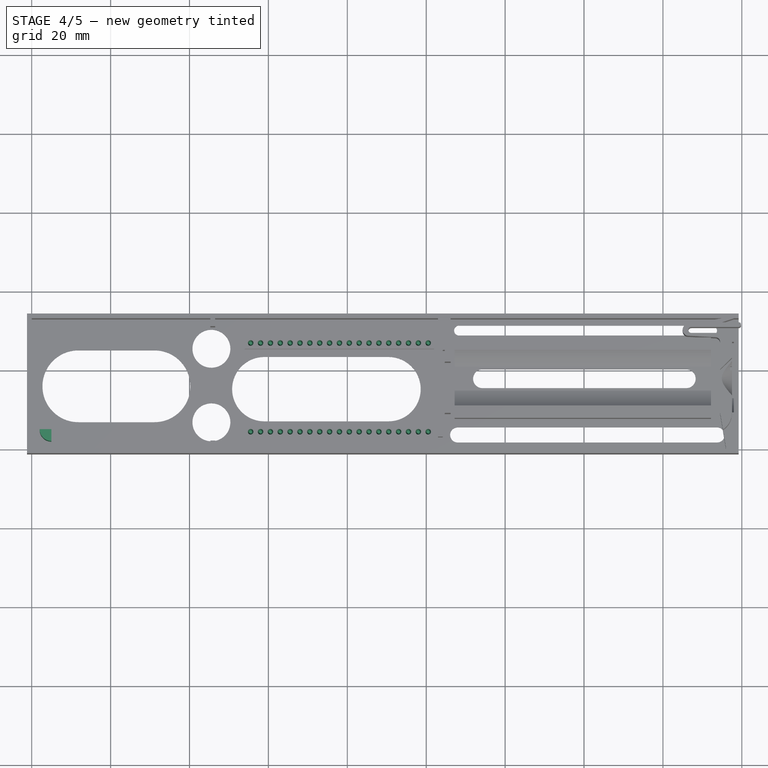
[diagram: stage 4 of 5 — top view after this stage's code; geometry added in this stage tinted green]
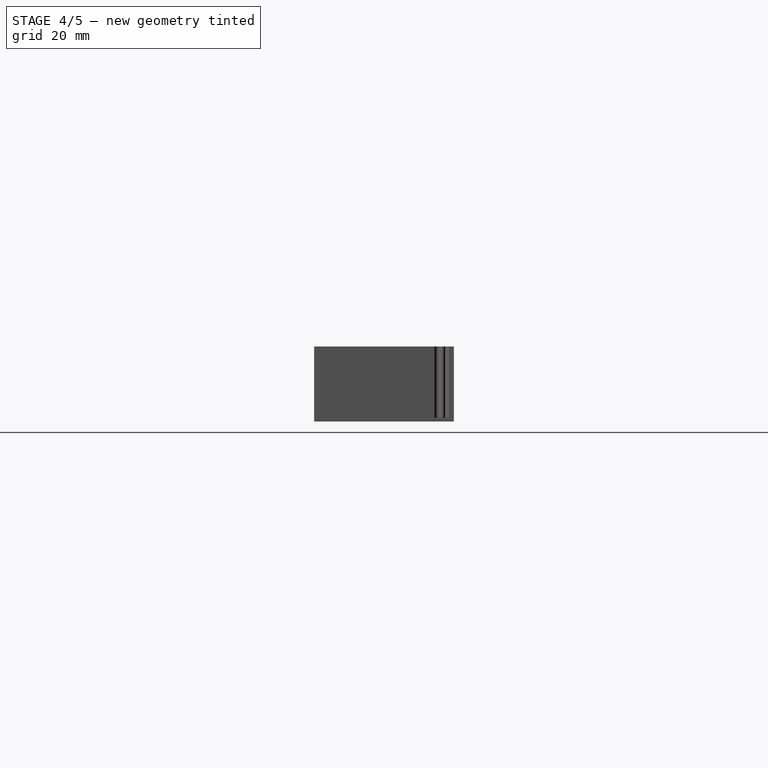
[diagram: stage 4 of 5 — right view after this stage's code; geometry added in this stage tinted green]
FEATURE [Sketcher::SketchObject] Sketch006
  ExternalGeometry = -> [Sketch]
  FullyConstrained = true
  MapMode = 5
  Support = -> [XY_Plane]
  sketch-geometry (1):
    g0: Circle CenterX=100.5 CenterY=4.5 CenterZ=0 NormalX=0 NormalY=0 NormalZ=1 AngleXU=0 Radius=0.4
  constraints (3):
    c: DistanceX(g0,g-3) = 0.5
    c: DistanceY(g-3,g0) = 0.5
    c: Radius(g0) = 0.4
FEATURE [PartDesign::Pocket] Pocket001
  BaseFeature = -> LinearPattern
  Direction = (0,0,-1)
  Length = 3.1
  Length2 = 5
  Profile = -> Sketch006
  ReferenceAxis = -> Sketch006 [N_Axis]
  Reversed = true
  TaperAngle = 6
  Type = 0
FEATURE [PartDesign::LinearPattern] LinearPattern001
  Direction = -> Sketch006 [H_Axis]
  Length = 45
  Occurrences = 19
  Reversed = true
  expr: Length = <<master>>.Constraints.espwidth - 1mm
FEATURE [PartDesign::LinearPattern] LinearPattern002
  Direction = -> Sketch006 [V_Axis]
  Length = 22.5
  Occurrences = 2
  expr: Length = <<master>>.Constraints.espheight - 0.5mm
FEATURE [PartDesign::MultiTransform] MultiTransform
  BaseFeature = -> Pocket001
  Originals = -> [Pocket001]
  Transformations = -> [LinearPattern001,LinearPattern002]
FEATURE [PartDesign::Plane] DatumPlane002
  Length = 68.7703
  MapMode = 45
  Placement = pos=(21,28,0) rot=(0.57735,0.57735,0.57735;2.0944rad)
  ResizeMode = 0
  Support = -> [Sketch]
  Width = 60.7703
FEATURE [PartDesign::Plane] DatumPlane003
  Length = 223.149
  MapMode = 45
  Placement = pos=(38,16,0) rot=(0,0.707107,0.707107;3.14159rad)
  ResizeMode = 0
  Support = -> [Sketch]
  Width = 70.1494
FEATURE [Sketcher::SketchObject] Sketch007
  ExternalGeometry = -> [Sketch]
  FullyConstrained = true
  MapMode = 5
  Support = -> [XY_Plane]
  sketch-geometry (3):
    g0: LineSegment StartX=5 StartY=5 StartZ=0 EndX=5 EndY=2 EndZ=0
    g1: LineSegment StartX=2 StartY=5 StartZ=0 EndX=5 EndY=5 EndZ=0
    g2: ArcOfCircle CenterX=5 CenterY=5 CenterZ=0 NormalX=0 NormalY=0 NormalZ=1 AngleXU=0 Radius=3 StartAngle=3.14159 EndAngle=4.71239
  constraints (9):
    c: Vertical(g0)
    c: Coincident(g1,g0)
    c: Horizontal(g1)
    c: Coincident(g2,g0)
    c: Coincident(g2,g0)
    c: Coincident(g2,g1)
    c: DistanceX(g-3,g0) = 1
    c: DistanceY(g-3,g0) = 1
    c: Radius(g2) = 3
FEATURE [PartDesign::Pad] Pad005
  BaseFeature = -> MultiTransform
  Direction = (0,0,1)
  Length = 12
  Length2 = 10
  Profile = -> Sketch007
  ReferenceAxis = -> Sketch007 [N_Axis]
  Type = 0
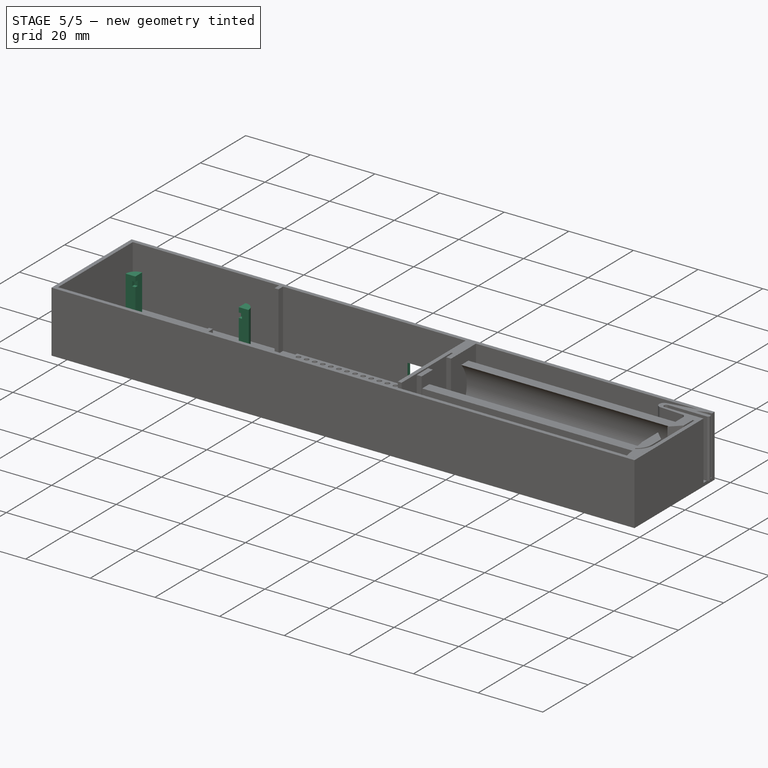
[diagram: stage 5 of 5 — iso view after this stage's code; geometry added in this stage tinted green]
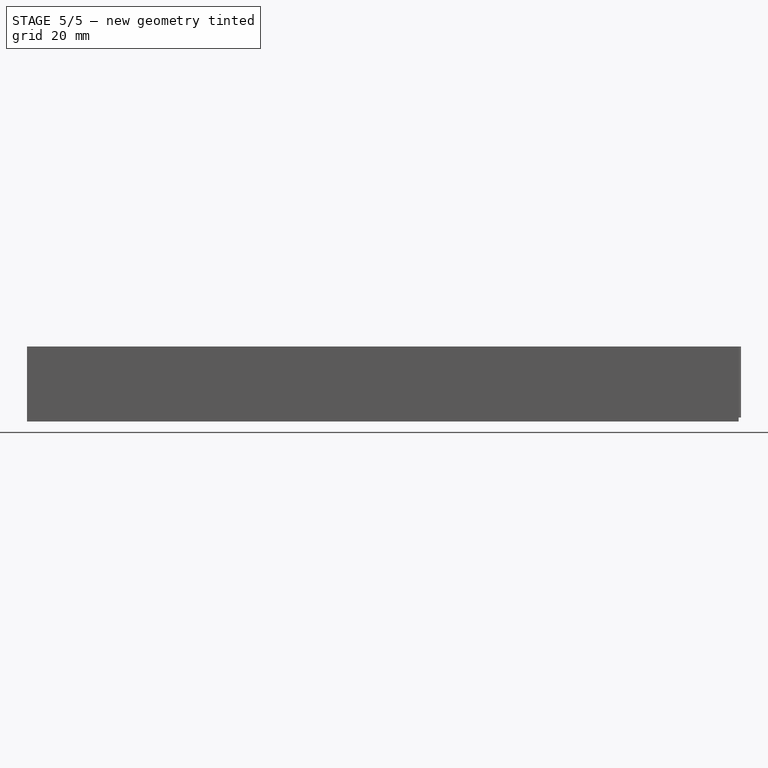
[diagram: stage 5 of 5 — front view after this stage's code; geometry added in this stage tinted green]
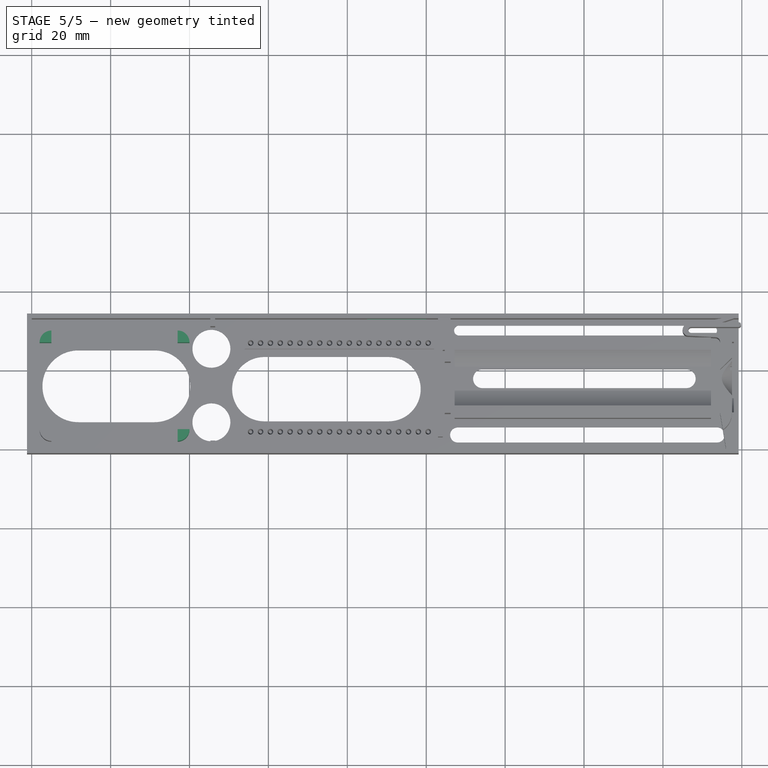
[diagram: stage 5 of 5 — top view after this stage's code; geometry added in this stage tinted green]
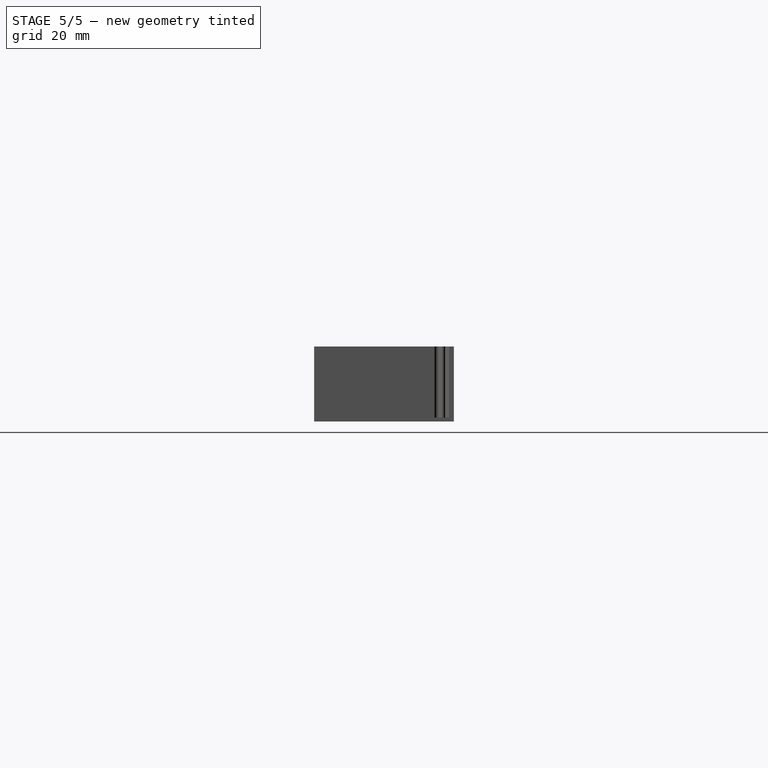
[diagram: stage 5 of 5 — right view after this stage's code; geometry added in this stage tinted green]
FEATURE [Sketcher::SketchObject] Sketch008
  AttachmentOffset = pos=(0,0,9) rot=(0,0,1;0rad)
  ExternalGeometry = -> [Sketch]
  FullyConstrained = true
  MapMode = 5
  Placement = pos=(0,0,9) rot=(0,0,1;0rad)
  Support = -> [XY_Plane]
  sketch-geometry (4):
    g0: LineSegment StartX=4 StartY=4 StartZ=0 EndX=5 EndY=4 EndZ=0
    g1: LineSegment StartX=5 StartY=4 StartZ=0 EndX=5 EndY=5 EndZ=0
    g2: LineSegment StartX=5 StartY=5 StartZ=0 EndX=4 EndY=5 EndZ=0
    g3: LineSegment StartX=4 StartY=5 StartZ=0 EndX=4 EndY=4 EndZ=0
  constraints (10):
    c: Coincident(g0,g1)
    c: Coincident(g1,g2)
    c: Coincident(g2,g3)
    c: Coincident(g3,g0)
    c: Horizontal(g0)
    c: Horizontal(g2)
    c: Vertical(g1)
    c: Vertical(g3)
    c: Coincident(g0,g-4)
    c: Coincident(g1,g-3)
FEATURE [PartDesign::Mirrored] Mirrored
  MirrorPlane = -> DatumPlane003
FEATURE [PartDesign::Mirrored] Mirrored001
  MirrorPlane = -> DatumPlane002
FEATURE [PartDesign::MultiTransform] MultiTransform001
  BaseFeature = -> Pad005
  Originals = -> [Pad005]
  Transformations = -> [Mirrored,Mirrored001]
FEATURE [PartDesign::Pocket] Pocket002
  BaseFeature = -> MultiTransform001
  Direction = (0,0,-1)
  Length = 1.5
  Length2 = 5
  Profile = -> Sketch008
  ReferenceAxis = -> Sketch008 [N_Axis]
  Reversed = true
  Type = 0
FEATURE [PartDesign::Mirrored] Mirrored002
  MirrorPlane = -> DatumPlane003
FEATURE [PartDesign::Mirrored] Mirrored003
  MirrorPlane = -> DatumPlane002
FEATURE [PartDesign::MultiTransform] MultiTransform002
  BaseFeature = -> Pocket002
  Originals = -> [Pocket002]
  Transformations = -> [Mirrored002,Mirrored003]
FEATURE [PartDesign::Plane] DatumPlane004
  Length = 223.149
  MapMode = 50
  Placement = pos=(103,33,0) rot=(0,0.707107,0.707107;3.14159rad)
  ResizeMode = 0
  Support = -> [Sketch]
  Width = 70.1494
FEATURE [Sketcher::SketchObject] Sketch009
  FullyConstrained = true
  MapMode = 5
  Placement = pos=(103,33,0) rot=(0,0.707107,0.707107;3.14159rad)
  Support = -> [DatumPlane004]
  sketch-geometry (4):
    g0: LineSegment StartX=3 StartY=1 StartZ=0 EndX=18 EndY=1 EndZ=0
    g1: LineSegment StartX=18 StartY=1 StartZ=0 EndX=18 EndY=7 EndZ=0
    g2: LineSegment StartX=18 StartY=7 StartZ=0 EndX=3 EndY=7 EndZ=0
    g3: LineSegment StartX=3 StartY=7 StartZ=0 EndX=3 EndY=1 EndZ=0
  constraints (12):
    c: Coincident(g0,g1)
    c: Coincident(g1,g2)
    c: Coincident(g2,g3)
    c: Coincident(g3,g0)
    c: Horizontal(g0)
    c: Horizontal(g2)
    c: Vertical(g1)
    c: Vertical(g3)
    c: DistanceX(g-1,g0) = 3
    c: DistanceX(g2,g2) = 15
    c: DistanceY(g1,g1) = 6
    c: DistanceY(g-1,g0) = 1
FEATURE [PartDesign::Pocket] Pocket003
  BaseFeature = -> MultiTransform002
  Direction = (0,-1,2e-16)
  Length = 5
  Length2 = 5
  Profile = -> Sketch009
  ReferenceAxis = -> Sketch009 [N_Axis]
  Reversed = true
  Type = 0
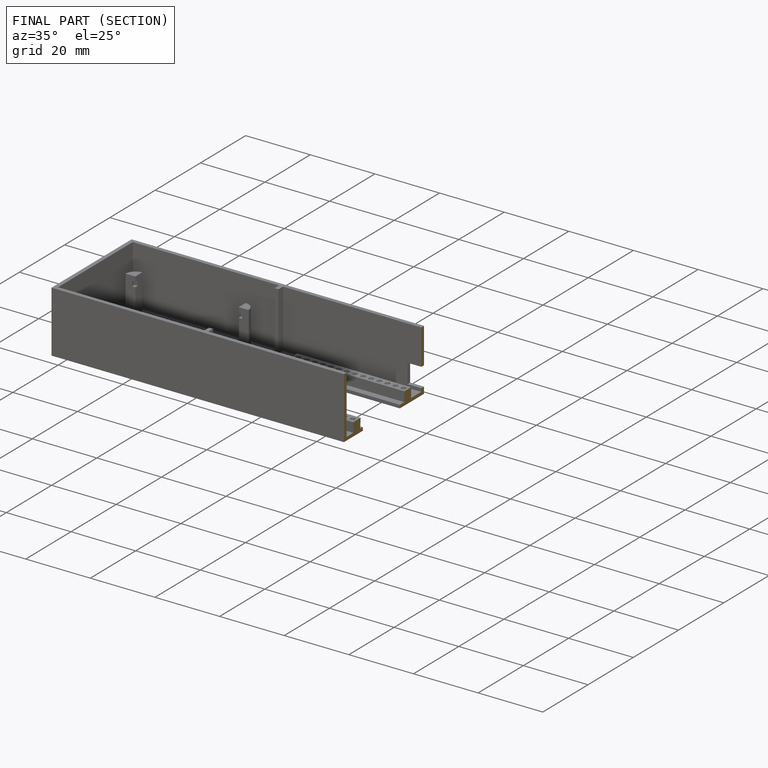
[diagram: finished part — half-section view (interior)]
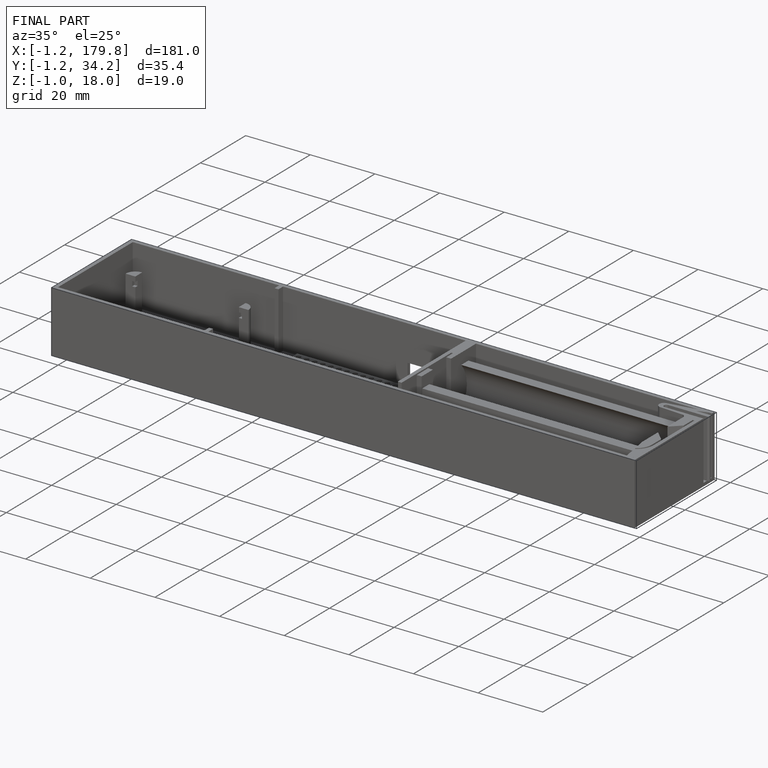
[diagram: finished part — iso view with bounding-box wireframe]
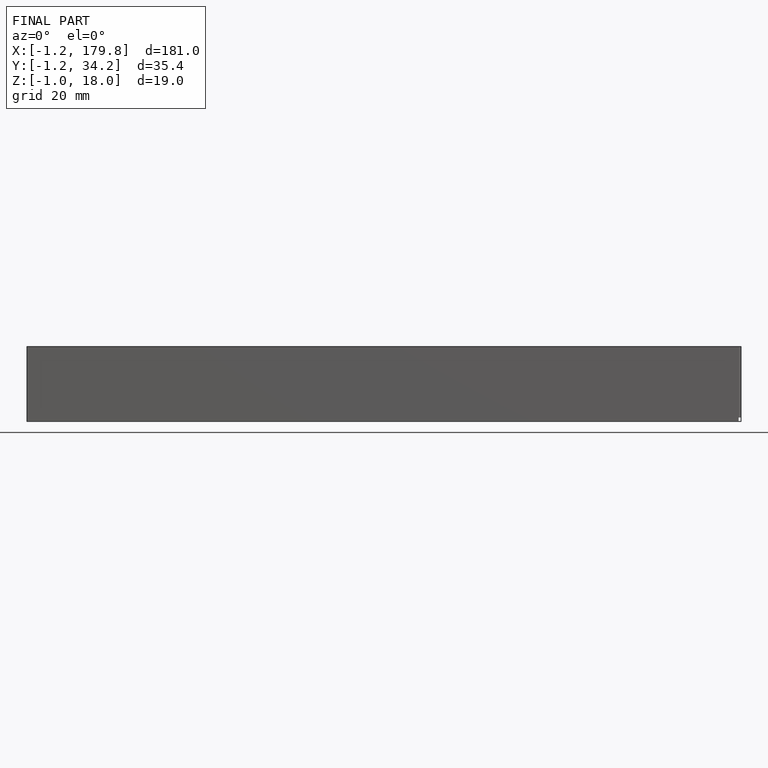
[diagram: finished part — front view with bounding-box wireframe]
